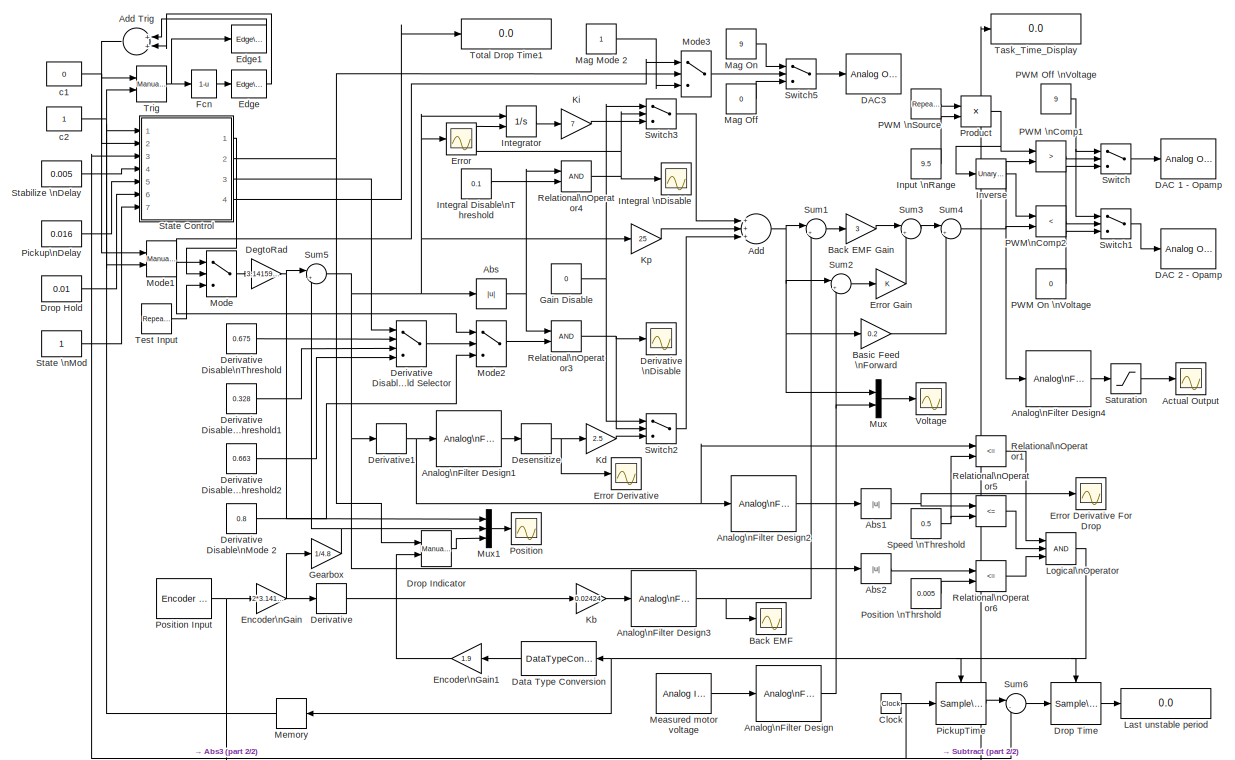
[diagram: root canvas - part 1/2, full width, top band]
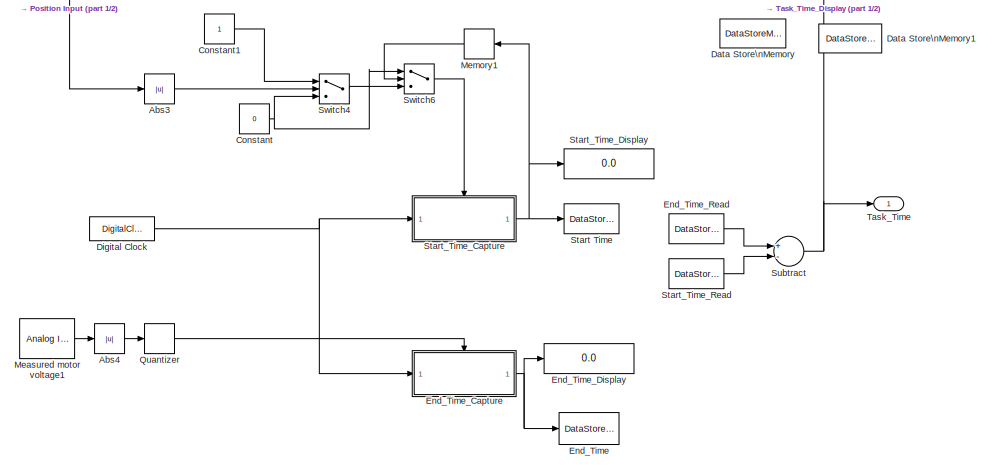
[diagram: root canvas - part 2/2, full width, bottom band]
MODEL swpwmctrl
KIND model
BLOCK [Abs] Abs
  OutDataType = sfix(16)
  OutScaling = 2^0
  SaturateOnIntegerOverflow = off
BLOCK [Abs] Abs1
  OutDataType = sfix(16)
  OutScaling = 2^0
  SaturateOnIntegerOverflow = off
BLOCK [Abs] Abs2
  OutDataType = sfix(16)
  OutScaling = 2^0
  SaturateOnIntegerOverflow = off
BLOCK [Abs] Abs3
  OutDataType = sfix(16)
  OutScaling = 2^0
  SaturateOnIntegerOverflow = off
BLOCK [Abs] Abs4
  OutDataType = sfix(16)
  OutScaling = 2^0
  SaturateOnIntegerOverflow = off
BLOCK [Scope] Actual Output
  DataFormat = StructureWithTime
  Floating = off
  MaxDataPoints = 60000
  NumInputPorts = 1
  Ports = [1]
  SampleTime = 0
  SaveName = ScopeData4
  YMax = 15
  YMin = -15
BLOCK [Sum] Add
  CollapseMode = All dimensions
  InputSameDT = off
  Inputs = +++
  OutDataType = sfix(16)
  OutDataTypeMode = Inherit via internal rule
  OutScaling = 2^-10
  Ports = [3, 1]
  SaturateOnIntegerOverflow = off
BLOCK [Sum] Add Trig
  CollapseMode = All dimensions
  InputSameDT = off
  OutDataType = sfix(16)
  OutDataTypeMode = Inherit via internal rule
  OutScaling = 2^-10
  Ports = [2, 1]
  SaturateOnIntegerOverflow = off
BLOCK [Reference] Analog\nFilter Design  REF=dsparch4/Analog\nFilter Design
  N = 3
  Ports = [1, 1]
  Rp = 2
  Rs = 40
  SourceBlock = dsparch4/Analog\nFilter Design
  SourceType = Analog Filter Design
  Whi = 80
  Wlo = 100
  filttype = Lowpass
  method = Butterworth
BLOCK [Reference] Analog\nFilter Design1  REF=dsparch4/Analog\nFilter Design
  N = 3
  Ports = [1, 1]
  Rp = 2
  Rs = 40
  SourceBlock = dsparch4/Analog\nFilter Design
  SourceType = Analog Filter Design
  Whi = 80
  Wlo = 100
  filttype = Lowpass
  method = Butterworth
BLOCK [Reference] Analog\nFilter Design2  REF=dsparch4/Analog\nFilter Design
  N = 3
  Ports = [1, 1]
  Rp = 2
  Rs = 40
  SourceBlock = dsparch4/Analog\nFilter Design
  SourceType = Analog Filter Design
  Whi = 80
  Wlo = 80
  filttype = Lowpass
  method = Butterworth
BLOCK [Reference] Analog\nFilter Design3  REF=dsparch4/Analog\nFilter Design
  N = 3
  Ports = [1, 1]
  Rp = 2
  Rs = 40
  SourceBlock = dsparch4/Analog\nFilter Design
  SourceType = Analog Filter Design
  Whi = 80
  Wlo = 100
  filttype = Lowpass
  method = Butterworth
BLOCK [Reference] Analog\nFilter Design4  REF=dsparch4/Analog\nFilter Design
  N = 3
  Ports = [1, 1]
  Rp = 2
  Rs = 40
  SourceBlock = dsparch4/Analog\nFilter Design
  SourceType = Analog Filter Design
  Whi = 80
  Wlo = 85
  filttype = Lowpass
  method = Butterworth
BLOCK [Scope] Back EMF
  DataFormat = StructureWithTime
  Floating = off
  MaxDataPoints = 60000
  NumInputPorts = 1
  Ports = [1]
  SampleTime = 0
  SaveName = ScopeData10
  YMax = 1
  YMin = -1
BLOCK [Gain] Back EMF Gain
  Gain = 3
  OutDataType = sfix(16)
  OutDataTypeMode = Inherit via internal rule
  OutScaling = 2^0
  ParameterDataType = sfix(16)
  ParameterDataTypeMode = Inherit via internal rule
  ParameterScaling = 2^0
  SaturateOnIntegerOverflow = off
BLOCK [Gain] Basic Feed \nForward
  Gain = 0.2
  OutDataType = sfix(16)
  OutDataTypeMode = Inherit via internal rule
  OutScaling = 2^0
  ParameterDataType = sfix(16)
  ParameterDataTypeMode = Inherit via internal rule
  ParameterScaling = 2^0
  SaturateOnIntegerOverflow = off
BLOCK [Clock] Clock
  Decimation = 10
BLOCK [Constant] Constant
  OutDataType = sfix(16)
  OutScaling = 2^0
  Value = 0
BLOCK [Constant] Constant1
  OutDataType = sfix(16)
  OutScaling = 2^0
BLOCK [Reference] DAC 1 - Opamp  REF=rtwinlib/Analog Output
  AttributesFormatString = Sensoray\\nModel 626 [auto]
  Channels = 1
  DrvAddress = 4294967295
  DrvName = Sensoray/Model_626
  DrvOptions = zeros(1,0)
  FinalValue = []
  InitialValue = []
  Ports = [1]
  RangeMode = 1
  SampleTime = -1
  SourceBlock = rtwinlib/Analog Output
  SourceType = RTWin Analog Output
  VoltRange = 1
BLOCK [Reference] DAC 2 - Opamp  REF=rtwinlib/Analog Output
  AttributesFormatString = Sensoray\\nModel 626 [auto]
  Channels = 2
  DrvAddress = 4294967295
  DrvName = Sensoray/Model_626
  DrvOptions = zeros(1,0)
  FinalValue = []
  InitialValue = []
  Ports = [1]
  RangeMode = 1
  SampleTime = -1
  SourceBlock = rtwinlib/Analog Output
  SourceType = RTWin Analog Output
  VoltRange = 1
BLOCK [Reference] DAC3  REF=rtwinlib/Analog Output
  AttributesFormatString = Sensoray\\nModel 626 [auto]
  Channels = 3
  DrvAddress = 4294967295
  DrvName = Sensoray/Model_626
  DrvOptions = zeros(1,0)
  FinalValue = []
  InitialValue = []
  Ports = [1]
  RangeMode = 1
  SampleTime = -1
  SourceBlock = rtwinlib/Analog Output
  SourceType = RTWin Analog Output
  VoltRange = 1
BLOCK [DataStoreMemory] Data Store\nMemory
  DataStoreName = Start_Time
  OutDataType = sfix(16)
  OutScaling = 2^0
  RTWStateStorageClass = Auto
  ReadBeforeWriteMsg = warning
  VectorParams1D = on
  WriteAfterReadMsg = warning
  WriteAfterWriteMsg = warning
BLOCK [DataStoreMemory] Data Store\nMemory1
  DataStoreName = End_Time
  OutDataType = sfix(16)
  OutScaling = 2^0
  RTWStateStorageClass = Auto
  ReadBeforeWriteMsg = warning
  VectorParams1D = on
  WriteAfterReadMsg = warning
  WriteAfterWriteMsg = warning
BLOCK [DataTypeConversion] Data Type Conversion
  OutDataType = sfix(16)
  OutDataTypeMode = double
  OutScaling = 2^0
  RndMeth = Floor
  SaturateOnIntegerOverflow = off
BLOCK [Gain] DegtoRad
  Gain = 3.141592/180
  OutDataType = sfix(16)
  OutDataTypeMode = Inherit via internal rule
  OutScaling = 2^0
  ParameterDataType = sfix(16)
  ParameterDataTypeMode = Inherit via internal rule
  ParameterScaling = 2^0
  SaturateOnIntegerOverflow = off
BLOCK [Derivative] Derivative
BLOCK [Constant] Derivative Disable\nMode 2
  OutDataType = sfix(16)
  OutScaling = 2^0
  Value = 0.8
BLOCK [Constant] Derivative Disable\nThreshold
  OutDataType = sfix(16)
  OutScaling = 2^0
  Value = 0.675
BLOCK [MultiPortSwitch] Derivative Disable\nThreshold Selector
  InputSameDT = off
  Inputs = 3
  OutDataType = sfix(16)
  OutScaling = 2^0
  Ports = [4, 1]
  SaturateOnIntegerOverflow = off
  zeroidx = on
BLOCK [Constant] Derivative Disable\nThreshold1
  OutDataType = sfix(16)
  OutScaling = 2^0
  Value = 0.328
BLOCK [Constant] Derivative Disable\nThreshold2
  OutDataType = sfix(16)
  OutScaling = 2^0
  Value = 0.663
BLOCK [Scope] Derivative \nDisable
  DataFormat = StructureWithTime
  Floating = off
  MaxDataPoints = 60000
  NumInputPorts = 1
  Ports = [1]
  SampleTime = 0
  SaveName = ScopeData3
  YMax = 3.25
  YMin = -0.25
BLOCK [Derivative] Derivative1
BLOCK [DeadZone] Desensitize
  LowerValue = -0.1
  UpperValue = 0.1
BLOCK [DigitalClock] Digital Clock
  SampleTime = -1
BLOCK [Constant] Drop Hold
  OutDataType = sfix(16)
  OutScaling = 2^0
  Value = 0.01
BLOCK [Reference] Drop Indicator  REF=simulink/Signal\nRouting/Manual Switch
  FunctionWithSeparateData = off
  Ports = [2, 1]
  RTWMemSecDataConstants = Inherit from model
  RTWMemSecDataInternal = Inherit from model
  RTWMemSecDataParameters = Inherit from model
  RTWMemSecFuncExecute = Inherit from model
  RTWMemSecFuncInitTerm = Inherit from model
  ShowPortLabels = FromPortIcon
  SourceBlock = simulink/Signal\nRouting/Manual Switch
  SourceType = Manual Switch
  SystemSampleTime = -1
  action = 0
  sw = 1
  varsize = off
BLOCK [Reference] Drop Time  REF=dspsigops/Sample\nand Hold
  FunctionWithSeparateData = off
  Ports = [1, 1, 0, 1]
  RTWMemSecDataConstants = Inherit from model
  RTWMemSecDataInternal = Inherit from model
  RTWMemSecDataParameters = Inherit from model
  RTWMemSecFuncExecute = Inherit from model
  RTWMemSecFuncInitTerm = Inherit from model
  ShowPortLabels = FromPortIcon
  SourceBlock = dspsigops/Sample\nand Hold
  SourceType = Sample and Hold
  SystemSampleTime = -1
  initCond = 0
  latchinput = off
  trig = Rising edge
BLOCK [Reference] Edge  REF=dspswit3/Edge\nDetector
  FunctionWithSeparateData = off
  Ports = [1, 1]
  RTWMemSecDataConstants = Inherit from model
  RTWMemSecDataInternal = Inherit from model
  RTWMemSecDataParameters = Inherit from model
  RTWMemSecFuncExecute = Inherit from model
  RTWMemSecFuncInitTerm = Inherit from model
  ShowPortLabels = FromPortIcon
  SourceBlock = dspswit3/Edge\nDetector
  SourceType = Edge Detector
  SystemSampleTime = -1
BLOCK [Reference] Edge1  REF=dspswit3/Edge\nDetector
  FunctionWithSeparateData = off
  Ports = [1, 1]
  RTWMemSecDataConstants = Inherit from model
  RTWMemSecDataInternal = Inherit from model
  RTWMemSecDataParameters = Inherit from model
  RTWMemSecFuncExecute = Inherit from model
  RTWMemSecFuncInitTerm = Inherit from model
  ShowPortLabels = FromPortIcon
  SourceBlock = dspswit3/Edge\nDetector
  SourceType = Edge Detector
  SystemSampleTime = -1
BLOCK [Gain] Encoder\nGain
  Gain = 2*3.141592/(500*4)
  OutDataType = sfix(16)
  OutDataTypeMode = Inherit via internal rule
  OutScaling = 2^0
  ParameterDataType = sfix(16)
  ParameterDataTypeMode = Inherit via internal rule
  ParameterScaling = 2^0
  SaturateOnIntegerOverflow = off
BLOCK [Gain] Encoder\nGain1
  Gain = 1.9
  OutDataType = sfix(16)
  OutDataTypeMode = Inherit via internal rule
  OutScaling = 2^0
  ParameterDataType = sfix(16)
  ParameterDataTypeMode = Inherit via internal rule
  ParameterScaling = 2^0
  SaturateOnIntegerOverflow = off
BLOCK [DataStoreWrite] End_Time
  DataStoreName = End_Time
  SampleTime = -1
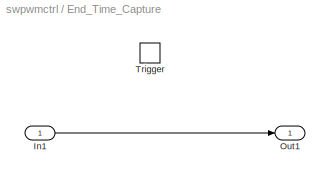
BLOCK [SubSystem] End_Time_Capture
  FunctionWithSeparateData = off
  MinAlgLoopOccurrences = off
  Ports = [1, 1, 0, 1]
  RTWSystemCode = Auto
  TreatAsAtomicUnit = on
BLOCK [Inport] End_Time_Capture/In1
  IconDisplay = Port number
  OutDataType = sfix(16)
  OutScaling = 2^0
BLOCK [Outport] End_Time_Capture/Out1
  IconDisplay = Port number
  OutDataType = sfix(16)
  OutScaling = 2^0
BLOCK [TriggerPort] End_Time_Capture/Trigger
  Ports = []
  StatesWhenEnabling = held
BLOCK [Display] End_Time_Display
  Decimation = 1
  Format = long
  Lockdown = off
  Ports = [1]
BLOCK [DataStoreRead] End_Time_Read
  DataStoreName = End_Time
  SampleTime = 0
BLOCK [Scope] Error
  DataFormat = StructureWithTime
  Floating = off
  MaxDataPoints = 60000
  NumInputPorts = 1
  Ports = [1]
  SampleTime = 0
  SaveName = ScopeData2
  YMax = 0.05
  YMin = -0.05
BLOCK [Scope] Error Derivative
  DataFormat = StructureWithTime
  Floating = off
  MaxDataPoints = 60000
  NumInputPorts = 1
  Ports = [1]
  SampleTime = 0
  SaveName = ScopeData8
  YMax = 1
  YMin = -1
BLOCK [Scope] Error Derivative For Drop
  DataFormat = StructureWithTime
  Floating = off
  MaxDataPoints = 60000
  NumInputPorts = 1
  Ports = [1]
  SampleTime = 0
  SaveName = ScopeData9
  YMax = 2
  YMin = 0
BLOCK [Gain] Error Gain
  OutDataType = sfix(16)
  OutDataTypeMode = Inherit via internal rule
  OutScaling = 2^0
  ParameterDataType = sfix(16)
  ParameterDataTypeMode = Inherit via internal rule
  ParameterScaling = 2^0
  SaturateOnIntegerOverflow = off
BLOCK [Fcn] Fcn
  Expr = 1-u
BLOCK [Constant] Gain Disable
  OutDataType = sfix(16)
  OutScaling = 2^0
  Value = 0
BLOCK [Gain] Gearbox
  Gain = 1/4.8
  OutDataType = sfix(16)
  OutDataTypeMode = Inherit via internal rule
  OutScaling = 2^0
  ParameterDataType = sfix(16)
  ParameterDataTypeMode = Inherit via internal rule
  ParameterScaling = 2^0
  SaturateOnIntegerOverflow = off
BLOCK [Constant] Input \nRange
  OutDataType = sfix(16)
  OutScaling = 2^0
  Value = 9.5
BLOCK [Constant] Integral Disable\nThreshold
  OutDataType = sfix(16)
  OutScaling = 2^0
  Value = 0.1
BLOCK [Scope] Integral \nDisable
  DataFormat = StructureWithTime
  Floating = off
  MaxDataPoints = 60000
  NumInputPorts = 1
  Ports = [1]
  SampleTime = 0
  SaveName = ScopeData5
  YMax = 3.25
  YMin = -0.25
BLOCK [Integrator] Integrator
  ExternalReset = falling
  Ports = [2, 1]
BLOCK [Reference] Inverse  REF=simulink/Math\nOperations/Unary Minus
  DoSatur = off
  Ports = [1, 1]
  SourceBlock = simulink/Math\nOperations/Unary Minus
  SourceType = Unary Minus
BLOCK [Gain] Kb
  Gain = 0.02424
  OutDataType = sfix(16)
  OutDataTypeMode = Inherit via internal rule
  OutScaling = 2^0
  ParameterDataType = sfix(16)
  ParameterDataTypeMode = Inherit via internal rule
  ParameterScaling = 2^0
  SaturateOnIntegerOverflow = off
BLOCK [Gain] Kd
  Gain = 2.5
  OutDataType = sfix(16)
  OutDataTypeMode = Inherit via internal rule
  OutScaling = 2^0
  ParameterDataType = sfix(16)
  ParameterDataTypeMode = Inherit via internal rule
  ParameterScaling = 2^0
  SaturateOnIntegerOverflow = off
BLOCK [Gain] Ki
  Gain = 7
  OutDataType = sfix(16)
  OutDataTypeMode = Inherit via internal rule
  OutScaling = 2^0
  ParameterDataType = sfix(16)
  ParameterDataTypeMode = Inherit via internal rule
  ParameterScaling = 2^0
  SaturateOnIntegerOverflow = off
BLOCK [Gain] Kp
  Gain = 25
  OutDataType = sfix(16)
  OutDataTypeMode = Inherit via internal rule
  OutScaling = 2^0
  ParameterDataType = sfix(16)
  ParameterDataTypeMode = Inherit via internal rule
  ParameterScaling = 2^0
  SaturateOnIntegerOverflow = off
BLOCK [Display] Last unstable period
  Decimation = 1
  Lockdown = off
  Ports = [1]
BLOCK [Logic] Logical\nOperator
  AllPortsSameDT = off
  Inputs = 3
  OutDataTypeMode = boolean
  Ports = [3, 1]
BLOCK [Constant] Mag Mode 2
  OutDataType = sfix(16)
  OutScaling = 2^0
BLOCK [Constant] Mag Off
  OutDataType = sfix(16)
  OutScaling = 2^0
  Value = 0
BLOCK [Constant] Mag On
  OutDataType = sfix(16)
  OutScaling = 2^0
  Value = 9
BLOCK [Reference] Measured motor voltage  REF=rtwinlib/Analog Input
  AttributesFormatString = Sensoray\\nModel 626 [auto]
  Channels = 1
  DataType = 1
  DrvAddress = 4294967295
  DrvName = Sensoray/Model_626
  DrvOptions = zeros(1,0)
  Ports = [0, 1]
  RangeMode = 1
  SampleTime = -1
  SourceBlock = rtwinlib/Analog Input
  SourceType = RTWin Analog Input
  VoltRange = 1
BLOCK [Reference] Measured motor voltage1  REF=rtwinlib/Analog Input
  AttributesFormatString = Sensoray\\nModel 626 [auto]
  Channels = 2
  DataType = 1
  DrvAddress = 4294967295
  DrvName = Sensoray/Model_626
  DrvOptions = zeros(1,0)
  Ports = [0, 1]
  RangeMode = 1
  SampleTime = -1
  SourceBlock = rtwinlib/Analog Input
  SourceType = RTWin Analog Input
  VoltRange = 1
BLOCK [Memory] Memory
BLOCK [Memory] Memory1
BLOCK [MultiPortSwitch] Mode
  InputSameDT = off
  Inputs = 2
  OutDataType = sfix(16)
  OutScaling = 2^0
  Ports = [3, 1]
  SaturateOnIntegerOverflow = off
  zeroidx = on
BLOCK [Reference] Mode1  REF=simulink/Signal\nRouting/Manual Switch
  FunctionWithSeparateData = off
  Ports = [2, 1]
  RTWMemSecDataConstants = Inherit from model
  RTWMemSecDataInternal = Inherit from model
  RTWMemSecDataParameters = Inherit from model
  RTWMemSecFuncExecute = Inherit from model
  RTWMemSecFuncInitTerm = Inherit from model
  ShowPortLabels = FromPortIcon
  SourceBlock = simulink/Signal\nRouting/Manual Switch
  SourceType = Manual Switch
  SystemSampleTime = -1
  action = 0
  sw = 1
  varsize = off
BLOCK [MultiPortSwitch] Mode2
  InputSameDT = off
  Inputs = 2
  OutDataType = sfix(16)
  OutScaling = 2^0
  Ports = [3, 1]
  SaturateOnIntegerOverflow = off
  zeroidx = on
BLOCK [MultiPortSwitch] Mode3
  InputSameDT = off
  Inputs = 2
  OutDataType = sfix(16)
  OutScaling = 2^0
  Ports = [3, 1]
  SaturateOnIntegerOverflow = off
  zeroidx = on
BLOCK [Mux] Mux
  DisplayOption = bar
  Inputs = 2
  Ports = [2, 1]
BLOCK [Mux] Mux1
  DisplayOption = bar
  Inputs = 3
  Ports = [3, 1]
BLOCK [Constant] PWM Off \nVoltage
  OutDataType = sfix(16)
  OutScaling = 2^0
  Value = 9
BLOCK [Constant] PWM On \nVoltage
  OutDataType = sfix(16)
  OutScaling = 2^0
  Value = 0
BLOCK [RelationalOperator] PWM \nComp1
  InputSameDT = off
  LogicOutDataTypeMode = boolean
  Operator = >
BLOCK [Reference] PWM \nSource  REF=simulink/Sources/Repeating\nSequence
  FunctionWithSeparateData = off
  Ports = [0, 1]
  RTWMemSecDataConstants = Inherit from model
  RTWMemSecDataInternal = Inherit from model
  RTWMemSecDataParameters = Inherit from model
  RTWMemSecFuncExecute = Inherit from model
  RTWMemSecFuncInitTerm = Inherit from model
  ShowPortLabels = FromPortIcon
  SourceBlock = simulink/Sources/Repeating\nSequence
  SourceType = Repeating table
  SystemSampleTime = -1
  rep_seq_t = [0 0.01]
  rep_seq_y = [0 1]
BLOCK [RelationalOperator] PWM\nComp2
  InputSameDT = off
  LogicOutDataTypeMode = boolean
  Operator = <
BLOCK [Reference] PickupTime  REF=dspsigops/Sample\nand Hold
  FunctionWithSeparateData = off
  Ports = [1, 1, 0, 1]
  RTWMemSecDataConstants = Inherit from model
  RTWMemSecDataInternal = Inherit from model
  RTWMemSecDataParameters = Inherit from model
  RTWMemSecFuncExecute = Inherit from model
  RTWMemSecFuncInitTerm = Inherit from model
  ShowPortLabels = FromPortIcon
  SourceBlock = dspsigops/Sample\nand Hold
  SourceType = Sample and Hold
  SystemSampleTime = -1
  initCond = 0
  latchinput = off
  trig = Falling edge
BLOCK [Constant] Pickup\nDelay
  OutDataType = sfix(16)
  OutScaling = 2^0
  Value = 0.016
BLOCK [Scope] Position
  DataFormat = StructureWithTime
  Floating = off
  MaxDataPoints = 60000
  NumInputPorts = 1
  Ports = [1]
  SampleTime = 0
  SaveName = ScopeData1
  YMax = 1.2
  YMin = -2
BLOCK [Reference] Position Input  REF=rtwinlib/Encoder Input
  AttributesFormatString = Sensoray\\nModel 626 [auto]
  Channels = [4]
  DataType = 1
  DrvAddress = 4294967295
  DrvName = Sensoray/Model_626
  DrvOptions = zeros(1,0)
  IndexPulse = 2
  InputFilter = Inf
  Ports = [0, 1]
  QuadMode = 3
  SampleTime = -1
  SourceBlock = rtwinlib/Encoder Input
  SourceType = RTWin Encoder Input
BLOCK [Constant] Position \nThrshold
  OutDataType = sfix(16)
  OutScaling = 2^0
  Value = 0.005
BLOCK [Product] Product
  CollapseMode = All dimensions
  InputSameDT = off
  OutDataType = sfix(16)
  OutDataTypeMode = Inherit via internal rule
  OutScaling = 2^0
  Ports = [2, 1]
  SaturateOnIntegerOverflow = off
BLOCK [Quantizer] Quantizer
BLOCK [RelationalOperator] Relational\nOperator1
  InputSameDT = off
  LogicOutDataTypeMode = boolean
  Operator = <=
BLOCK [RelationalOperator] Relational\nOperator3
  InputSameDT = off
  LogicOutDataTypeMode = boolean
BLOCK [RelationalOperator] Relational\nOperator4
  InputSameDT = off
  LogicOutDataTypeMode = boolean
BLOCK [RelationalOperator] Relational\nOperator5
  InputSameDT = off
  LogicOutDataTypeMode = boolean
  Operator = <=
BLOCK [RelationalOperator] Relational\nOperator6
  InputSameDT = off
  LogicOutDataTypeMode = boolean
  Operator = <=
BLOCK [Saturate] Saturation
  LowerLimit = -10
  OutDataType = sfix(16)
  OutScaling = 2^0
  UpperLimit = 10
BLOCK [Constant] Speed \nThreshold
  OutDataType = sfix(16)
  OutScaling = 2^0
  Value = 0.5
BLOCK [Constant] Stabilize \nDelay
  OutDataType = sfix(16)
  OutScaling = 2^0
  Value = 0.005
BLOCK [DataStoreWrite] Start Time
  DataStoreName = Start_Time
  SampleTime = -1
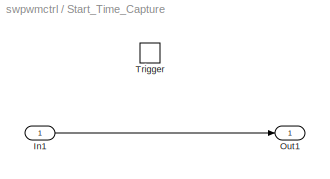
BLOCK [SubSystem] Start_Time_Capture
  FunctionWithSeparateData = off
  MinAlgLoopOccurrences = off
  Ports = [1, 1, 0, 1]
  RTWSystemCode = Auto
  TreatAsAtomicUnit = on
BLOCK [Inport] Start_Time_Capture/In1
  IconDisplay = Port number
  OutDataType = sfix(16)
  OutScaling = 2^0
BLOCK [Outport] Start_Time_Capture/Out1
  IconDisplay = Port number
  OutDataType = sfix(16)
  OutScaling = 2^0
BLOCK [TriggerPort] Start_Time_Capture/Trigger
  Ports = []
  StatesWhenEnabling = held
BLOCK [Display] Start_Time_Display
  Decimation = 1
  Format = long
  Lockdown = off
  Ports = [1]
BLOCK [DataStoreRead] Start_Time_Read
  DataStoreName = Start_Time
  SampleTime = 0
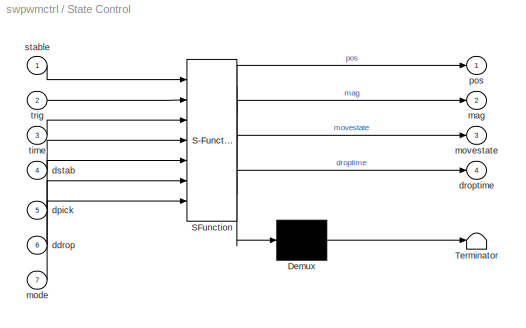
BLOCK [SubSystem] State Control
  FunctionWithSeparateData = off
  MaskDescription = Embedded MATLAB block
  MaskDisplay = disp('fcn');
  MaskIconFrame = on
  MaskIconOpaque = off
  MaskIconRotate = none
  MaskIconUnits = autoscale
  MaskSelfModifiable = on
  MaskType = Stateflow
  MinAlgLoopOccurrences = off
  PermitHierarchicalResolution = ExplicitOnly
  Ports = [7, 4]
  RTWSystemCode = Auto
BLOCK [Demux] State Control/ Demux 
  Outputs = 1
  Ports = [1, 1]
BLOCK [S-Function] State Control/ SFunction 
  EnableBusSupport = on
  FunctionName = sf_sfun
  PortCounts = [7 5]
  Ports = [7, 5]
  Tag = Stateflow S-Function swpwmctrl 2
BLOCK [Terminator] State Control/ Terminator 
BLOCK [Inport] State Control/ddrop
  IconDisplay = Port number
  Port = 6
BLOCK [Inport] State Control/dpick
  IconDisplay = Port number
  Port = 5
BLOCK [Outport] State Control/droptime
  IconDisplay = Port number
  Port = 4
BLOCK [Inport] State Control/dstab
  IconDisplay = Port number
  Port = 4
BLOCK [Outport] State Control/mag
  IconDisplay = Port number
  Port = 2
BLOCK [Inport] State Control/mode
  IconDisplay = Port number
  Port = 7
BLOCK [Outport] State Control/movestate
  IconDisplay = Port number
  Port = 3
BLOCK [Outport] State Control/pos
  IconDisplay = Port number
  OutDataType = sfix(16)
  OutScaling = 2^0
BLOCK [Inport] State Control/stable
  IconDisplay = Port number
  OutDataType = sfix(16)
  OutScaling = 2^0
BLOCK [Inport] State Control/time
  IconDisplay = Port number
  Port = 3
BLOCK [Inport] State Control/trig
  IconDisplay = Port number
  Port = 2
BLOCK [Constant] State \nMod
  OutDataType = sfix(16)
  OutScaling = 2^0
BLOCK [Sum] Subtract
  CollapseMode = All dimensions
  InputSameDT = off
  Inputs = +-
  OutDataType = sfix(16)
  OutDataTypeMode = Inherit via internal rule
  OutScaling = 2^-10
  Ports = [2, 1]
  SaturateOnIntegerOverflow = off
BLOCK [Sum] Sum1
  CollapseMode = All dimensions
  IconShape = round
  InputSameDT = off
  Inputs = |+-
  OutDataType = sfix(16)
  OutDataTypeMode = Inherit via internal rule
  OutScaling = 2^0
  Ports = [2, 1]
  SaturateOnIntegerOverflow = off
BLOCK [Sum] Sum2
  CollapseMode = All dimensions
  IconShape = round
  InputSameDT = off
  Inputs = |+-
  OutDataType = sfix(16)
  OutDataTypeMode = Inherit via internal rule
  OutScaling = 2^0
  Ports = [2, 1]
  SaturateOnIntegerOverflow = off
BLOCK [Sum] Sum3
  CollapseMode = All dimensions
  IconShape = round
  InputSameDT = off
  Inputs = |++
  OutDataType = sfix(16)
  OutDataTypeMode = Inherit via internal rule
  OutScaling = 2^0
  Ports = [2, 1]
  SaturateOnIntegerOverflow = off
BLOCK [Sum] Sum4
  CollapseMode = All dimensions
  IconShape = round
  InputSameDT = off
  Inputs = |++
  OutDataType = sfix(16)
  OutDataTypeMode = Inherit via internal rule
  OutScaling = 2^0
  Ports = [2, 1]
  SaturateOnIntegerOverflow = off
BLOCK [Sum] Sum5
  CollapseMode = All dimensions
  IconShape = round
  InputSameDT = off
  Inputs = |+-
  OutDataType = sfix(16)
  OutDataTypeMode = Inherit via internal rule
  OutScaling = 2^0
  Ports = [2, 1]
  SaturateOnIntegerOverflow = off
BLOCK [Sum] Sum6
  CollapseMode = All dimensions
  IconShape = round
  InputSameDT = off
  Inputs = |-+
  OutDataType = sfix(16)
  OutDataTypeMode = Inherit via internal rule
  OutScaling = 2^0
  Ports = [2, 1]
  SaturateOnIntegerOverflow = off
BLOCK [Switch] Switch
  InputSameDT = off
  OutDataType = sfix(16)
  OutScaling = 2^0
  SaturateOnIntegerOverflow = off
BLOCK [Switch] Switch1
  InputSameDT = off
  OutDataType = sfix(16)
  OutScaling = 2^0
  SaturateOnIntegerOverflow = off
BLOCK [Switch] Switch2
  InputSameDT = off
  OutDataType = sfix(16)
  OutScaling = 2^0
  SaturateOnIntegerOverflow = off
BLOCK [Switch] Switch3
  InputSameDT = off
  OutDataType = sfix(16)
  OutScaling = 2^0
  SaturateOnIntegerOverflow = off
BLOCK [Switch] Switch4
  InputSameDT = off
  OutDataType = sfix(16)
  OutScaling = 2^0
  SaturateOnIntegerOverflow = off
  Threshold = 100
BLOCK [Switch] Switch5
  Criteria = u2 > Threshold
  InputSameDT = off
  OutDataType = sfix(16)
  OutScaling = 2^0
  SaturateOnIntegerOverflow = off
BLOCK [Switch] Switch6
  Criteria = u2 > Threshold
  InputSameDT = off
  OutDataType = sfix(16)
  OutScaling = 2^0
  SaturateOnIntegerOverflow = off
BLOCK [Outport] Task_Time
  IconDisplay = Port number
  OutDataType = sfix(16)
  OutScaling = 2^0
BLOCK [Display] Task_Time_Display
  Decimation = 1
  Format = long
  Lockdown = off
  Ports = [1]
BLOCK [Reference] Test Input  REF=simulink/Sources/Repeating\nSequence
  FunctionWithSeparateData = off
  Ports = [0, 1]
  RTWMemSecDataConstants = Inherit from model
  RTWMemSecDataInternal = Inherit from model
  RTWMemSecDataParameters = Inherit from model
  RTWMemSecFuncExecute = Inherit from model
  RTWMemSecFuncInitTerm = Inherit from model
  ShowPortLabels = FromPortIcon
  SourceBlock = simulink/Sources/Repeating\nSequence
  SourceType = Repeating table
  SystemSampleTime = -1
  rep_seq_t = [0 1 1.01 4 4.01 5]
  rep_seq_y = [0 0 90 90 0 0]
BLOCK [Display] Total Drop Time1
  Decimation = 1
  Lockdown = off
  Ports = [1]
BLOCK [Reference] Trig  REF=simulink/Signal\nRouting/Manual Switch
  FunctionWithSeparateData = off
  Ports = [2, 1]
  RTWMemSecDataConstants = Inherit from model
  RTWMemSecDataInternal = Inherit from model
  RTWMemSecDataParameters = Inherit from model
  RTWMemSecFuncExecute = Inherit from model
  RTWMemSecFuncInitTerm = Inherit from model
  ShowPortLabels = FromPortIcon
  SourceBlock = simulink/Signal\nRouting/Manual Switch
  SourceType = Manual Switch
  SystemSampleTime = -1
  action = 0
  sw = 0
  varsize = off
BLOCK [Scope] Voltage
  DataFormat = StructureWithTime
  Floating = off
  MaxDataPoints = 60000
  NumInputPorts = 1
  Ports = [1]
  SampleTime = 0
  YMax = 9
  YMin = -9
BLOCK [Constant] c1
  OutDataType = sfix(16)
  OutScaling = 2^0
  Value = 0
BLOCK [Constant] c2
  OutDataType = sfix(16)
  OutScaling = 2^0
NET Abs1:1 -> Error Derivative For Drop:1, Relational\nOperator5:1
LINE Abs2:1 -> Relational\nOperator6:1
LINE Abs3:1 -> Switch4:2
LINE Abs4:1 -> Quantizer:1
NET Abs:1 -> Relational\nOperator3:1, Relational\nOperator4:1
LINE Add Trig:1 -> State Control:2
NET Add:1 -> Basic Feed \nForward:1, Mux:1, Sum1:1, Sum2:1
LINE Analog\nFilter Design1:1 -> Desensitize:1
LINE Analog\nFilter Design2:1 -> Abs1:1
NET Analog\nFilter Design3:1 -> Back EMF:1, Sum1:2
LINE Analog\nFilter Design4:1 -> Saturation:1
NET Analog\nFilter Design:1 -> Mux:2, Sum2:2
LINE Back EMF Gain:1 -> Sum3:1
LINE Basic Feed \nForward:1 -> Sum4:2
NET Clock:1 -> PickupTime:1, State Control:3, Sum6:2
LINE Constant1:1 -> Switch4:1
NET Constant:1 -> Switch4:3, Switch6:1
LINE Data Type Conversion:1 -> Encoder\nGain1:1
NET DegtoRad:1 -> Mux1:1, Sum5:1
LINE Derivative Disable\nMode 2:1 -> Mode2:3
LINE Derivative Disable\nThreshold Selector:1 -> Mode2:2
LINE Derivative Disable\nThreshold1:1 -> Derivative Disable\nThreshold Selector:3
LINE Derivative Disable\nThreshold2:1 -> Derivative Disable\nThreshold Selector:4
LINE Derivative Disable\nThreshold:1 -> Derivative Disable\nThreshold Selector:2
NET Derivative1:1 -> Analog\nFilter Design1:1, Analog\nFilter Design2:1, Relational\nOperator1:1
LINE Derivative:1 -> Kb:1
NET Desensitize:1 -> Error Derivative:1, Kd:1
NET Digital Clock:1 -> End_Time_Capture:1, Start_Time_Capture:1
LINE Drop Hold:1 -> State Control:6
LINE Drop Indicator:1 -> Mux1:3
LINE Drop Time:1 -> Last unstable period:1
LINE Edge1:1 -> Add Trig:1
LINE Edge:1 -> Add Trig:2
LINE Encoder\nGain1:1 -> Drop Indicator:2
NET Encoder\nGain:1 -> Derivative:1, Gearbox:1
LINE End_Time_Capture/In1:1 -> End_Time_Capture/Out1:1
NET End_Time_Capture:1 -> End_Time:1, End_Time_Display:1
LINE End_Time_Read:1 -> Subtract:1
LINE Error Gain:1 -> Sum3:2
LINE Fcn:1 -> Edge:1
NET Gain Disable:1 -> Switch2:1, Switch3:1
NET Gearbox:1 -> Mux1:2, Sum5:2
LINE Input \nRange:1 -> Product:2
LINE Integral Disable\nThreshold:1 -> Relational\nOperator4:2
LINE Integrator:1 -> Ki:1
LINE Inverse:1 -> PWM\nComp2:1
LINE Kb:1 -> Analog\nFilter Design3:1
LINE Kd:1 -> Switch2:3
LINE Ki:1 -> Switch3:3
LINE Kp:1 -> Add:2
NET Logical\nOperator:1 -> Data Type Conversion:1, Drop Time:trigger, Memory:1, PickupTime:trigger
LINE Mag Mode 2:1 -> Mode3:3
LINE Mag Off:1 -> Switch5:3
LINE Mag On:1 -> Switch5:1
LINE Measured motor voltage1:1 -> Abs4:1
LINE Measured motor voltage:1 -> Analog\nFilter Design:1
LINE Memory1:1 -> Switch6:2
LINE Memory:1 -> State Control:1
NET Mode1:1 -> Mode2:1, Mode3:1, Mode:1
LINE Mode2:1 -> Relational\nOperator3:2
LINE Mode3:1 -> Switch5:2
LINE Mode:1 -> DegtoRad:1
LINE Mux1:1 -> Position:1
LINE Mux:1 -> Voltage:1
NET PWM Off \nVoltage:1 -> Switch1:1, Switch:1
NET PWM On \nVoltage:1 -> Switch1:3, Switch:3
LINE PWM \nComp1:1 -> Switch:2
LINE PWM \nSource:1 -> Product:1
LINE PWM\nComp2:1 -> Switch1:2
LINE PickupTime:1 -> Sum6:1
LINE Pickup\nDelay:1 -> State Control:5
NET Position Input:1 -> Abs3:1, Encoder\nGain:1
LINE Position \nThrshold:1 -> Relational\nOperator6:2
NET Product:1 -> Inverse:1, PWM \nComp1:1
LINE Quantizer:1 -> End_Time_Capture:trigger
LINE Relational\nOperator1:1 -> Logical\nOperator:1
NET Relational\nOperator3:1 -> Derivative \nDisable:1, Switch2:2
NET Relational\nOperator4:1 -> Integral \nDisable:1, Integrator:2, Switch3:2
LINE Relational\nOperator5:1 -> Logical\nOperator:2
LINE Relational\nOperator6:1 -> Logical\nOperator:3
LINE Saturation:1 -> Actual Output:1
NET Speed \nThreshold:1 -> Relational\nOperator1:2, Relational\nOperator5:2
LINE Stabilize \nDelay:1 -> State Control:4
LINE Start_Time_Capture/In1:1 -> Start_Time_Capture/Out1:1
NET Start_Time_Capture:1 -> Memory1:1, Start Time:1, Start_Time_Display:1
LINE Start_Time_Read:1 -> Subtract:2
LINE State Control/ Demux :1 -> State Control/ Terminator :1
LINE State Control/ SFunction :1 -> State Control/ Demux :1
LINE State Control/ SFunction :2 -> State Control/pos:1
LINE State Control/ SFunction :3 -> State Control/mag:1
LINE State Control/ SFunction :4 -> State Control/movestate:1
LINE State Control/ SFunction :5 -> State Control/droptime:1
LINE State Control/ddrop:1 -> State Control/ SFunction :6
LINE State Control/dpick:1 -> State Control/ SFunction :5
LINE State Control/dstab:1 -> State Control/ SFunction :4
LINE State Control/mode:1 -> State Control/ SFunction :7
LINE State Control/stable:1 -> State Control/ SFunction :1
LINE State Control/time:1 -> State Control/ SFunction :3
LINE State Control/trig:1 -> State Control/ SFunction :2
LINE State Control:1 -> Mode:2
NET State Control:2 -> Drop Indicator:1, Mode3:2
LINE State Control:3 -> Derivative Disable\nThreshold Selector:1
LINE State Control:4 -> Total Drop Time1:1
LINE State \nMod:1 -> State Control:7
NET Subtract:1 -> Task_Time:1, Task_Time_Display:1
LINE Sum1:1 -> Back EMF Gain:1
LINE Sum2:1 -> Error Gain:1
LINE Sum3:1 -> Sum4:1
NET Sum4:1 -> Analog\nFilter Design4:1, PWM \nComp1:2, PWM\nComp2:2
NET Sum5:1 -> Abs2:1, Abs:1, Derivative1:1, Error:1, Integrator:1, Kp:1
LINE Sum6:1 -> Drop Time:1
LINE Switch1:1 -> DAC 2 - Opamp:1
LINE Switch2:1 -> Add:3
LINE Switch3:1 -> Add:1
LINE Switch4:1 -> Switch6:3
LINE Switch5:1 -> DAC3:1
LINE Switch6:1 -> Start_Time_Capture:trigger
LINE Switch:1 -> DAC 1 - Opamp:1
LINE Test Input:1 -> Mode:3
NET Trig:1 -> Edge1:1, Fcn:1
NET c1:1 -> Mode1:1, Trig:1
NET c2:1 -> Mode1:2, Trig:2
note: NET lines group one-source signal fan-out (src -> all destinations, sorted); 1:1 wires keep LINE
CHART State Control states=1 transitions=1
  STATE_LABEL 'eML_blk_kernel()'
